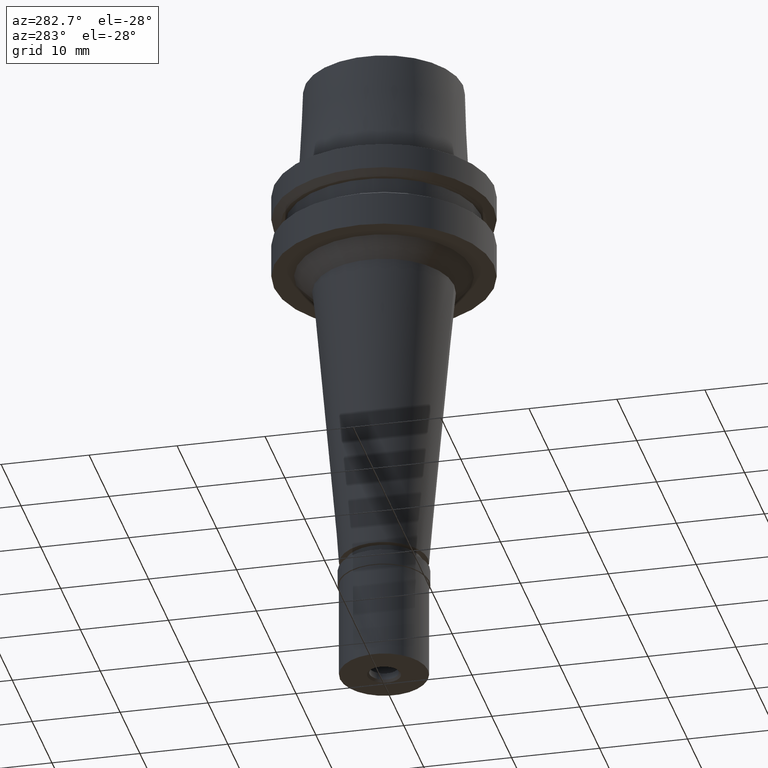
[diagram: clean part render]
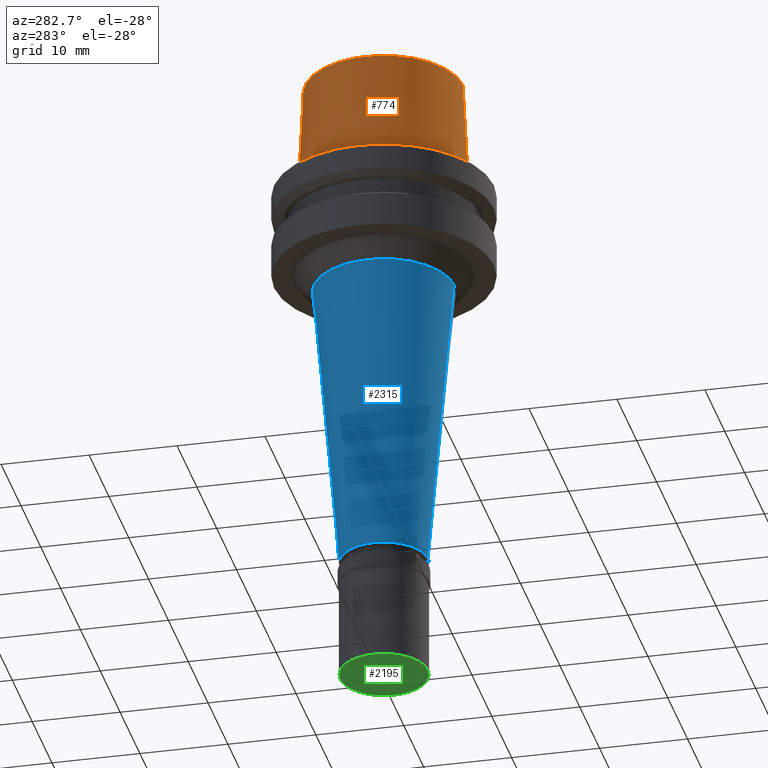
[diagram: same view with three faces highlighted in distinct colors, each labeled with its STEP entity id]
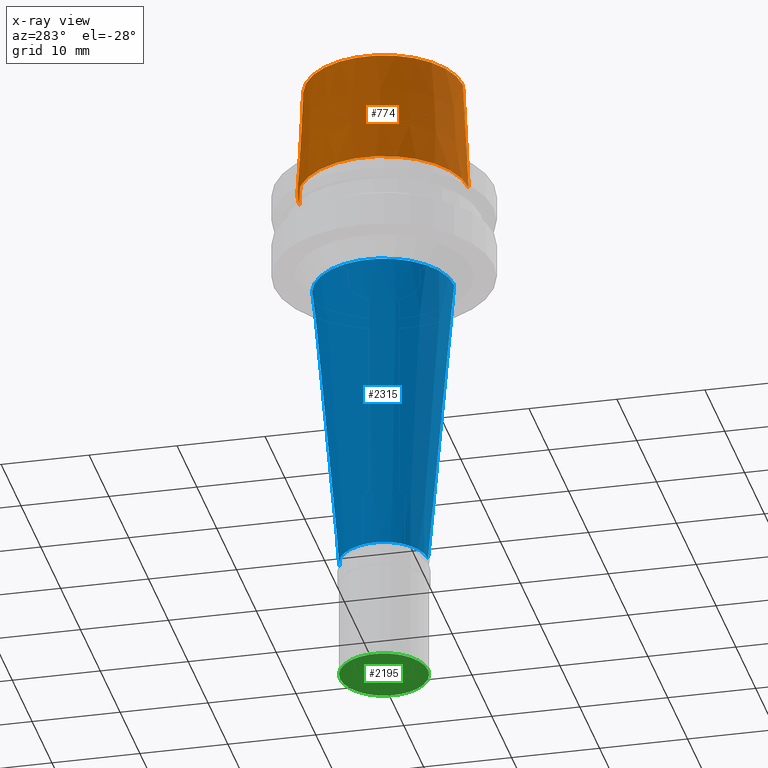
[diagram: x-ray of the same camera — body ghosted, the three highlighted faces saturated]
A machine part, auxiliary view with three faces highlighted in distinct colors.
The next image is the same camera in x-ray (body ghosted, the three faces saturated) — at least one of them is partly hidden behind the body in this view.
Their STEP definitions:

[orange] entity #774 — the highlighted conical surface has half-angle 2.862 deg.
#83 = ORIENTED_EDGE ( 'NONE', *, *, #1211, .T. ) ;
#153 = ORIENTED_EDGE ( 'NONE', *, *, #505, .F. ) ;
#168 = CARTESIAN_POINT ( 'NONE',  ( 0.0000000000000000000, 0.0000000000000000000, 6.500000000000000000 ) ) ;
#196 = CIRCLE ( 'NONE', #2540, 9.624999771398000448 ) ;
#319 = DIRECTION ( 'NONE',  ( 0.0000000000000000000, 0.04993752584484958956, -0.9987523434327927330 ) ) ;
#357 = CARTESIAN_POINT ( 'NONE',  ( 0.0000000000000000000, 0.0000000000000000000, 13.00000000000000000 ) ) ;
#360 = CARTESIAN_POINT ( 'NONE',  ( 0.0000000000000000000, -8.975000960130000038, 13.00000000000000000 ) ) ;
#406 = DIRECTION ( 'NONE',  ( 0.0000000000000000000, -1.000000000000000000, 0.0000000000000000000 ) ) ;
#429 = CARTESIAN_POINT ( 'NONE',  ( 0.0000000000000000000, 0.0000000000000000000, 2.557953848736000191E-13 ) ) ;
#463 = EDGE_LOOP ( 'NONE', ( #2187, #153, #83, #1466 ) ) ;
#505 = EDGE_CURVE ( 'NONE', #2534, #2253, #2188, .T. ) ;
#518 = CARTESIAN_POINT ( 'NONE',  ( 0.0000000000000000000, -8.975000960130000038, 13.00000000000000000 ) ) ;
#541 = CARTESIAN_POINT ( 'NONE',  ( 0.0000000000000000000, 9.624999771398000448, 1.332267629550000037E-13 ) ) ;
#561 = VECTOR ( 'NONE', #2568, 999.9999999999998863 ) ;
#569 = VERTEX_POINT ( 'NONE', #2148 ) ;
#595 = EDGE_CURVE ( 'NONE', #569, #2550, #724, .T. ) ;
#724 = LINE ( 'NONE', #2158, #1129 ) ;
#774 = ADVANCED_FACE ( 'NONE', ( #1248 ), #2267, .T. ) ;
#1002 = DIRECTION ( 'NONE',  ( 0.0000000000000000000, 0.0000000000000000000, -1.000000000000000000 ) ) ;
#1129 = VECTOR ( 'NONE', #319, 999.9999999999998863 ) ;
#1211 = EDGE_CURVE ( 'NONE', #2534, #569, #2604, .T. ) ;
#1248 = FACE_OUTER_BOUND ( 'NONE', #463, .T. ) ;
#1464 = CARTESIAN_POINT ( 'NONE',  ( 0.0000000000000000000, -9.624999771398000448, 1.332267629550000037E-13 ) ) ;
#1466 = ORIENTED_EDGE ( 'NONE', *, *, #595, .T. ) ;
#1789 = DIRECTION ( 'NONE',  ( 0.0000000000000000000, 0.0000000000000000000, -1.000000000000000000 ) ) ;
#2054 = DIRECTION ( 'NONE',  ( 0.0000000000000000000, 1.000000000000000000, 0.0000000000000000000 ) ) ;
#2066 = DIRECTION ( 'NONE',  ( 0.0000000000000000000, -1.000000000000000000, 0.0000000000000000000 ) ) ;
#2148 = CARTESIAN_POINT ( 'NONE',  ( 0.0000000000000000000, 8.975000960130000038, 13.00000000000000000 ) ) ;
#2158 = CARTESIAN_POINT ( 'NONE',  ( 0.0000000000000000000, 8.975000960130000038, 13.00000000000000000 ) ) ;
#2187 = ORIENTED_EDGE ( 'NONE', *, *, #2689, .T. ) ;
#2188 = LINE ( 'NONE', #518, #561 ) ;
#2253 = VERTEX_POINT ( 'NONE', #1464 ) ;
#2267 = CONICAL_SURFACE ( 'NONE', #2307, 9.300000365763999355, 0.04995830450907576964 ) ;
#2271 = DIRECTION ( 'NONE',  ( 0.0000000000000000000, 0.0000000000000000000, 1.000000000000000000 ) ) ;
#2307 = AXIS2_PLACEMENT_3D ( 'NONE', #168, #1002, #2066 ) ;
#2534 = VERTEX_POINT ( 'NONE', #360 ) ;
#2540 = AXIS2_PLACEMENT_3D ( 'NONE', #429, #2271, #2054 ) ;
#2550 = VERTEX_POINT ( 'NONE', #541 ) ;
#2568 = DIRECTION ( 'NONE',  ( 0.0000000000000000000, -0.04993752584484958956, -0.9987523434327927330 ) ) ;
#2604 = CIRCLE ( 'NONE', #2653, 8.975000960130000038 ) ;
#2653 = AXIS2_PLACEMENT_3D ( 'NONE', #357, #1789, #406 ) ;
#2689 = EDGE_CURVE ( 'NONE', #2550, #2253, #196, .T. ) ;

[blue] entity #2315 — the highlighted conical surface has half-angle 5 deg.
#4 = EDGE_CURVE ( 'NONE', #1034, #1792, #694, .T. ) ;
#94 = CARTESIAN_POINT ( 'NONE',  ( 0.0000000000000000000, 7.974614559881000986, -12.00000000000000000 ) ) ;
#238 = LINE ( 'NONE', #2500, #2327 ) ;
#275 = DIRECTION ( 'NONE',  ( 0.0000000000000000000, 1.000000000000000000, 0.0000000000000000000 ) ) ;
#278 = CIRCLE ( 'NONE', #1587, 5.000000000000000000 ) ;
#474 = DIRECTION ( 'NONE',  ( 0.0000000000000000000, -1.000000000000000000, 0.0000000000000000000 ) ) ;
#502 = FACE_OUTER_BOUND ( 'NONE', #1623, .T. ) ;
#503 = LINE ( 'NONE', #94, #779 ) ;
#611 = EDGE_CURVE ( 'NONE', #1792, #976, #503, .T. ) ;
#640 = DIRECTION ( 'NONE',  ( 0.0000000000000000000, 0.08715574274765398866, -0.9961946980917458783 ) ) ;
#692 = DIRECTION ( 'NONE',  ( 0.0000000000000000000, 0.0000000000000000000, -1.000000000000000000 ) ) ;
#694 = CIRCLE ( 'NONE', #1260, 7.974614559881000986 ) ;
#737 = DIRECTION ( 'NONE',  ( 0.0000000000000000000, 0.0000000000000000000, 1.000000000000000000 ) ) ;
#779 = VECTOR ( 'NONE', #928, 1000.000000000000000 ) ;
#862 = ORIENTED_EDGE ( 'NONE', *, *, #611, .T. ) ;
#928 = DIRECTION ( 'NONE',  ( 0.0000000000000000000, -0.08715574274765398866, -0.9961946980917458783 ) ) ;
#976 = VERTEX_POINT ( 'NONE', #2116 ) ;
#1034 = VERTEX_POINT ( 'NONE', #2169 ) ;
#1122 = CARTESIAN_POINT ( 'NONE',  ( 0.0000000000000000000, 0.0000000000000000000, -29.00000000000000000 ) ) ;
#1151 = CARTESIAN_POINT ( 'NONE',  ( 0.0000000000000000000, 7.974614559881000986, -12.00000000000000000 ) ) ;
#1171 = CARTESIAN_POINT ( 'NONE',  ( 0.0000000000000000000, 0.0000000000000000000, -46.00000000000000000 ) ) ;
#1260 = AXIS2_PLACEMENT_3D ( 'NONE', #1938, #692, #474 ) ;
#1366 = ORIENTED_EDGE ( 'NONE', *, *, #2521, .T. ) ;
#1457 = AXIS2_PLACEMENT_3D ( 'NONE', #1122, #2537, #275 ) ;
#1552 = CARTESIAN_POINT ( 'NONE',  ( 0.0000000000000000000, -5.000000000000000000, -46.00000000000000000 ) ) ;
#1587 = AXIS2_PLACEMENT_3D ( 'NONE', #1171, #737, #1807 ) ;
#1623 = EDGE_LOOP ( 'NONE', ( #1366, #2245, #2132, #862 ) ) ;
#1727 = VERTEX_POINT ( 'NONE', #1552 ) ;
#1792 = VERTEX_POINT ( 'NONE', #1151 ) ;
#1807 = DIRECTION ( 'NONE',  ( 0.0000000000000000000, 1.000000000000000000, 0.0000000000000000000 ) ) ;
#1938 = CARTESIAN_POINT ( 'NONE',  ( 0.0000000000000000000, 0.0000000000000000000, -12.00000000000000000 ) ) ;
#2116 = CARTESIAN_POINT ( 'NONE',  ( 0.0000000000000000000, 5.000000000000000000, -46.00000000000000000 ) ) ;
#2132 = ORIENTED_EDGE ( 'NONE', *, *, #4, .T. ) ;
#2169 = CARTESIAN_POINT ( 'NONE',  ( 0.0000000000000000000, -7.974614559881000986, -12.00000000000000000 ) ) ;
#2243 = EDGE_CURVE ( 'NONE', #1034, #1727, #238, .T. ) ;
#2245 = ORIENTED_EDGE ( 'NONE', *, *, #2243, .F. ) ;
#2315 = ADVANCED_FACE ( 'NONE', ( #502 ), #2574, .T. ) ;
#2327 = VECTOR ( 'NONE', #640, 1000.000000000000000 ) ;
#2500 = CARTESIAN_POINT ( 'NONE',  ( 0.0000000000000000000, -7.974614559881000986, -12.00000000000000000 ) ) ;
#2521 = EDGE_CURVE ( 'NONE', #976, #1727, #278, .T. ) ;
#2537 = DIRECTION ( 'NONE',  ( 0.0000000000000000000, 0.0000000000000000000, 1.000000000000000000 ) ) ;
#2574 = CONICAL_SURFACE ( 'NONE', #1457, 6.487307279941000537, 0.08726646259969973729 ) ;

[green] entity #2195 — the highlighted planar face has unit normal (0, 0, 1).
#87 = EDGE_CURVE ( 'NONE', #1952, #2665, #1167, .T. ) ;
#149 = CIRCLE ( 'NONE', #1195, 5.000000000000000000 ) ;
#201 = PLANE ( 'NONE',  #1189 ) ;
#326 = CARTESIAN_POINT ( 'NONE',  ( 0.0000000000000000000, 0.0000000000000000000, -13.00000000000000000 ) ) ;
#346 = ORIENTED_EDGE ( 'NONE', *, *, #517, .F. ) ;
#412 = DIRECTION ( 'NONE',  ( 1.000000000000000000, 0.0000000000000000000, 0.0000000000000000000 ) ) ;
#424 = FACE_OUTER_BOUND ( 'NONE', #2514, .T. ) ;
#517 = EDGE_CURVE ( 'NONE', #2665, #1952, #1863, .T. ) ;
#619 = AXIS2_PLACEMENT_3D ( 'NONE', #645, #1469, #2087 ) ;
#645 = CARTESIAN_POINT ( 'NONE',  ( 0.0000000000000000000, 0.0000000000000000000, -13.00000000000000000 ) ) ;
#740 = DIRECTION ( 'NONE',  ( 0.0000000000000000000, -1.000000000000000000, 0.0000000000000000000 ) ) ;
#908 = ORIENTED_EDGE ( 'NONE', *, *, #2612, .F. ) ;
#946 = CIRCLE ( 'NONE', #619, 5.000000000000000000 ) ;
#999 = AXIS2_PLACEMENT_3D ( 'NONE', #326, #1633, #2246 ) ;
#1167 = CIRCLE ( 'NONE', #999, 1.899999999999999911 ) ;
#1189 = AXIS2_PLACEMENT_3D ( 'NONE', #1869, #1241, #412 ) ;
#1195 = AXIS2_PLACEMENT_3D ( 'NONE', #1387, #2427, #2626 ) ;
#1225 = CARTESIAN_POINT ( 'NONE',  ( 0.0000000000000000000, 1.899999999999999911, -13.00000000000000000 ) ) ;
#1241 = DIRECTION ( 'NONE',  ( 0.0000000000000000000, 0.0000000000000000000, 1.000000000000000000 ) ) ;
#1346 = CARTESIAN_POINT ( 'NONE',  ( 0.0000000000000000000, 0.0000000000000000000, -13.00000000000000000 ) ) ;
#1387 = CARTESIAN_POINT ( 'NONE',  ( 0.0000000000000000000, 0.0000000000000000000, -13.00000000000000000 ) ) ;
#1469 = DIRECTION ( 'NONE',  ( 0.0000000000000000000, 0.0000000000000000000, 1.000000000000000000 ) ) ;
#1502 = EDGE_CURVE ( 'NONE', #2000, #2226, #946, .T. ) ;
#1633 = DIRECTION ( 'NONE',  ( 0.0000000000000000000, 0.0000000000000000000, -1.000000000000000000 ) ) ;
#1653 = AXIS2_PLACEMENT_3D ( 'NONE', #1346, #2428, #740 ) ;
#1862 = CARTESIAN_POINT ( 'NONE',  ( 0.0000000000000000000, -1.899999999999999911, -13.00000000000000000 ) ) ;
#1863 = CIRCLE ( 'NONE', #1653, 1.899999999999999911 ) ;
#1869 = CARTESIAN_POINT ( 'NONE',  ( 0.0000000000000000000, 0.0000000000000000000, -13.00000000000000000 ) ) ;
#1893 = CARTESIAN_POINT ( 'NONE',  ( 0.0000000000000000000, 5.000000000000000000, -13.00000000000000000 ) ) ;
#1952 = VERTEX_POINT ( 'NONE', #1225 ) ;
#1966 = EDGE_LOOP ( 'NONE', ( #2454, #346 ) ) ;
#1987 = CARTESIAN_POINT ( 'NONE',  ( 0.0000000000000000000, -5.000000000000000000, -13.00000000000000000 ) ) ;
#2000 = VERTEX_POINT ( 'NONE', #1987 ) ;
#2068 = FACE_BOUND ( 'NONE', #1966, .T. ) ;
#2087 = DIRECTION ( 'NONE',  ( 0.0000000000000000000, -1.000000000000000000, 0.0000000000000000000 ) ) ;
#2195 = ADVANCED_FACE ( 'NONE', ( #424, #2068 ), #201, .F. ) ;
#2226 = VERTEX_POINT ( 'NONE', #1893 ) ;
#2246 = DIRECTION ( 'NONE',  ( 0.0000000000000000000, 1.000000000000000000, 0.0000000000000000000 ) ) ;
#2427 = DIRECTION ( 'NONE',  ( 0.0000000000000000000, 0.0000000000000000000, 1.000000000000000000 ) ) ;
#2428 = DIRECTION ( 'NONE',  ( 0.0000000000000000000, 0.0000000000000000000, -1.000000000000000000 ) ) ;
#2454 = ORIENTED_EDGE ( 'NONE', *, *, #87, .F. ) ;
#2502 = ORIENTED_EDGE ( 'NONE', *, *, #1502, .F. ) ;
#2514 = EDGE_LOOP ( 'NONE', ( #908, #2502 ) ) ;
#2612 = EDGE_CURVE ( 'NONE', #2226, #2000, #149, .T. ) ;
#2626 = DIRECTION ( 'NONE',  ( 0.0000000000000000000, 1.000000000000000000, 0.0000000000000000000 ) ) ;
#2665 = VERTEX_POINT ( 'NONE', #1862 ) ;